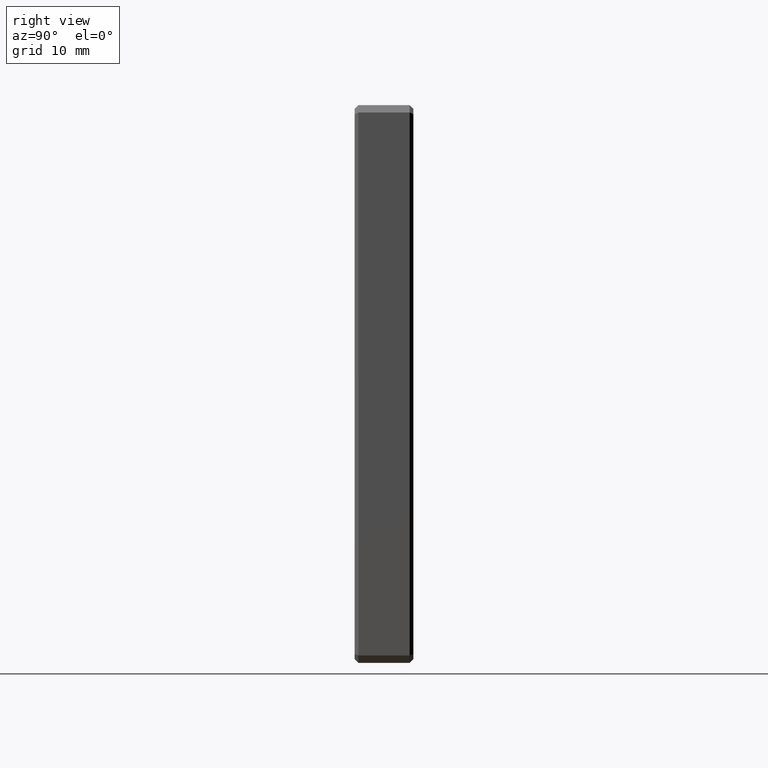
[diagram: clean part render]
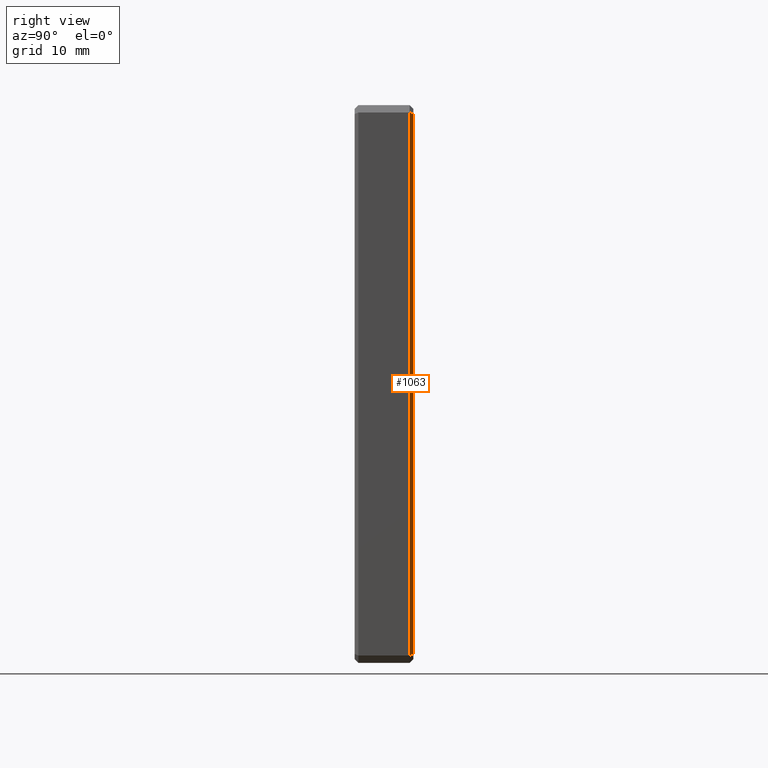
[diagram: same view with one face highlighted and labeled with its STEP entity id]
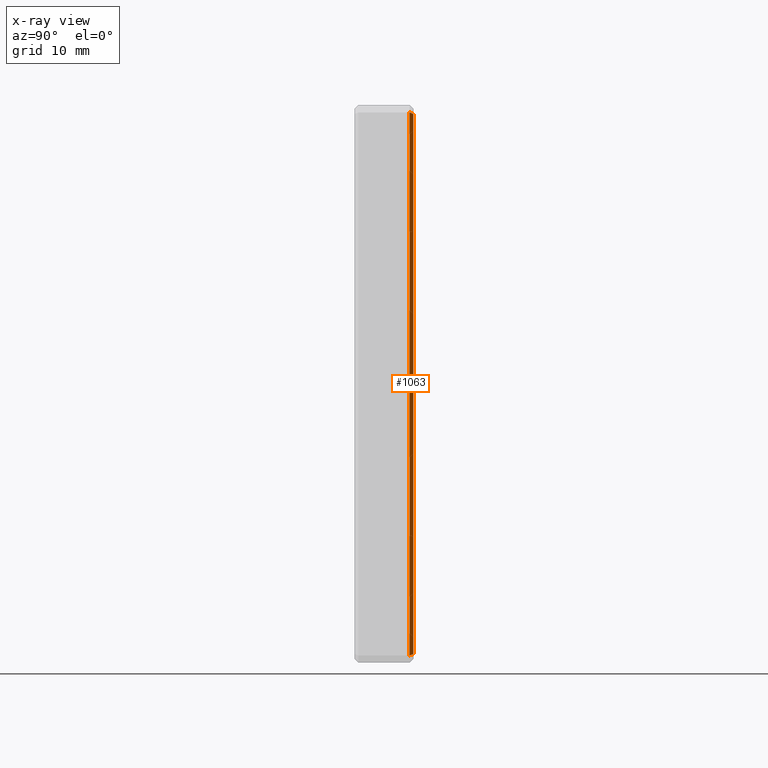
[diagram: x-ray of the same camera — body ghosted, the highlighted face saturated]
A machine part, right view. The second image highlights one B-rep face of the part: STEP entity #1063.
The next image is the same camera in x-ray: the body ghosted, the highlighted face saturated — about 0% of this face is hidden behind the body in this view.
In plain terms, the highlighted planar face has unit normal (0.7071, 0.7071, -0).
Its self-contained STEP definition (entity closure, byte-faithful):
#8 = ORIENTED_EDGE ( 'NONE', *, *, #580, .F. ) ;
#66 = VECTOR ( 'NONE', #1387, 1000.000000000000000 ) ;
#109 = VECTOR ( 'NONE', #897, 1000.000000000000114 ) ;
#207 = EDGE_LOOP ( 'NONE', ( #371, #1271, #1053, #8 ) ) ;
#260 = VERTEX_POINT ( 'NONE', #1437 ) ;
#315 = FACE_OUTER_BOUND ( 'NONE', #207, .T. ) ;
#330 = CARTESIAN_POINT ( 'NONE',  ( 32.00000000000000711, 7.499999999999971578, 37.00000000000000711 ) ) ;
#371 = ORIENTED_EDGE ( 'NONE', *, *, #1421, .T. ) ;
#389 = VECTOR ( 'NONE', #846, 1000.000000000000000 ) ;
#482 = DIRECTION ( 'NONE',  ( 0.7071067811865500152, 0.7071067811865451302, -1.936791684231637107E-16 ) ) ;
#580 = EDGE_CURVE ( 'NONE', #939, #1542, #850, .T. ) ;
#737 = VERTEX_POINT ( 'NONE', #1071 ) ;
#739 = LINE ( 'NONE', #1116, #1224 ) ;
#846 = DIRECTION ( 'NONE',  ( 2.739037067331800623E-16, 0.000000000000000000, 1.000000000000000000 ) ) ;
#850 = LINE ( 'NONE', #990, #66 ) ;
#897 = DIRECTION ( 'NONE',  ( 0.6785983445458466656, -0.6785983445458513286, -0.2810846377148104036 ) ) ;
#939 = VERTEX_POINT ( 'NONE', #1324 ) ;
#990 = CARTESIAN_POINT ( 'NONE',  ( 31.49999999999996447, 8.000000000000000000, -37.00000000000000711 ) ) ;
#998 = CARTESIAN_POINT ( 'NONE',  ( 31.49999999999997158, 8.000000000000000000, -8.627966762095164322E-15 ) ) ;
#1034 = CARTESIAN_POINT ( 'NONE',  ( 31.49999999999996447, 8.000000000000000000, -36.79289321881345387 ) ) ;
#1053 = ORIENTED_EDGE ( 'NONE', *, *, #1179, .F. ) ;
#1063 = ADVANCED_FACE ( 'NONE', ( #315 ), #1230, .T. ) ;
#1071 = CARTESIAN_POINT ( 'NONE',  ( 32.00000000000000711, 7.499999999999971578, 37.00000000000000711 ) ) ;
#1116 = CARTESIAN_POINT ( 'NONE',  ( 32.21388464525416850, 7.286115354745808403, 37.08859392084763584 ) ) ;
#1179 = EDGE_CURVE ( 'NONE', #1542, #260, #1404, .T. ) ;
#1224 = VECTOR ( 'NONE', #1515, 1000.000000000000114 ) ;
#1230 = PLANE ( 'NONE',  #1487 ) ;
#1271 = ORIENTED_EDGE ( 'NONE', *, *, #1380, .F. ) ;
#1275 = CARTESIAN_POINT ( 'NONE',  ( 24.48199220304964285, 15.01800779695036603, -33.88593920847660712 ) ) ;
#1324 = CARTESIAN_POINT ( 'NONE',  ( 31.49999999999998579, 8.000000000000000000, 36.79289321881345387 ) ) ;
#1358 = DIRECTION ( 'NONE',  ( 2.739037067331800623E-16, -0.000000000000000000, 1.000000000000000000 ) ) ;
#1380 = EDGE_CURVE ( 'NONE', #260, #737, #1636, .T. ) ;
#1387 = DIRECTION ( 'NONE',  ( -2.739037067331800623E-16, 0.000000000000000000, -1.000000000000000000 ) ) ;
#1404 = LINE ( 'NONE', #1275, #109 ) ;
#1421 = EDGE_CURVE ( 'NONE', #939, #737, #739, .T. ) ;
#1437 = CARTESIAN_POINT ( 'NONE',  ( 31.99999999999998579, 7.499999999999971578, -37.00000000000000711 ) ) ;
#1487 = AXIS2_PLACEMENT_3D ( 'NONE', #998, #482, #1358 ) ;
#1515 = DIRECTION ( 'NONE',  ( 0.6785983445458456664, -0.6785983445458502183, 0.2810846377148156772 ) ) ;
#1542 = VERTEX_POINT ( 'NONE', #1034 ) ;
#1636 = LINE ( 'NONE', #330, #389 ) ;